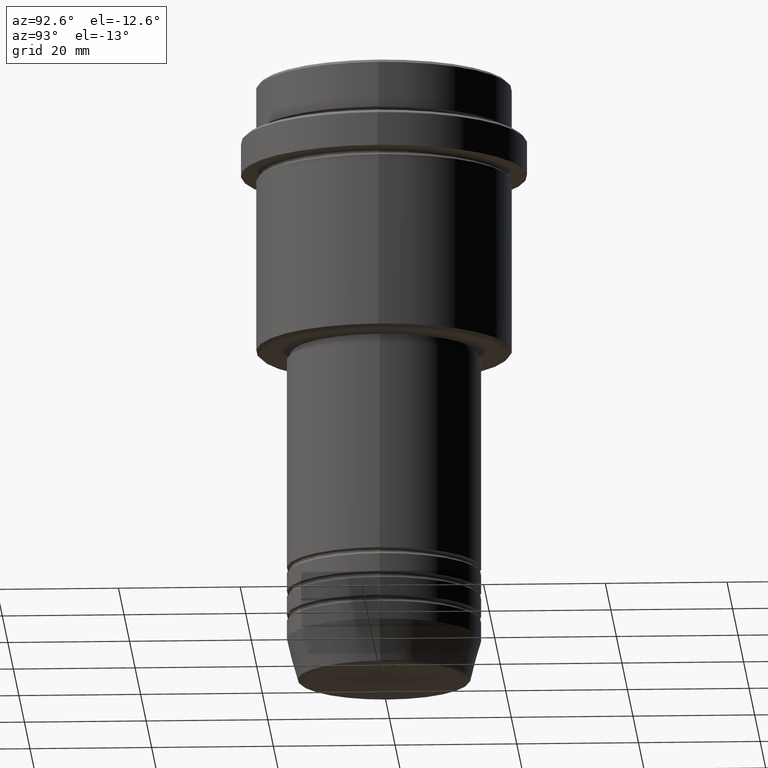
[diagram: clean part render]
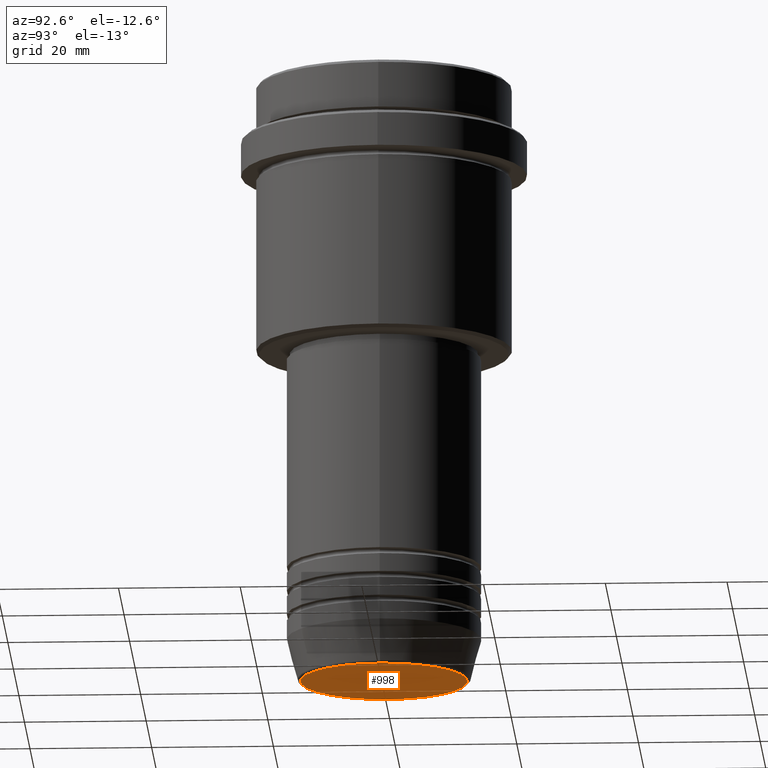
[diagram: same view with one face highlighted and labeled with its STEP entity id]
A machine part, auxiliary view. The second image highlights one B-rep face of the part: STEP entity #998.
In plain terms, the highlighted planar face has unit normal (0, -0, 1).
Its self-contained STEP definition (entity closure, byte-faithful):
#103 = PLANE ( 'NONE',  #180 ) ;
#113 = DIRECTION ( 'NONE',  ( 0.000000000000000000, -0.000000000000000000, 1.000000000000000000 ) ) ;
#180 = AXIS2_PLACEMENT_3D ( 'NONE', #1083, #113, #987 ) ;
#212 = FACE_OUTER_BOUND ( 'NONE', #1270, .T. ) ;
#258 = ORIENTED_EDGE ( 'NONE', *, *, #867, .T. ) ;
#336 = AXIS2_PLACEMENT_3D ( 'NONE', #1362, #811, #1124 ) ;
#651 = VERTEX_POINT ( 'NONE', #943 ) ;
#750 = EDGE_CURVE ( 'NONE', #651, #1233, #951, .T. ) ;
#811 = DIRECTION ( 'NONE',  ( 0.000000000000000000, 0.000000000000000000, -1.000000000000000000 ) ) ;
#867 = EDGE_CURVE ( 'NONE', #1233, #651, #908, .T. ) ;
#868 = DIRECTION ( 'NONE',  ( 0.000000000000000000, 0.000000000000000000, -1.000000000000000000 ) ) ;
#908 = CIRCLE ( 'NONE', #1202, 13.74069215899265473 ) ;
#943 = CARTESIAN_POINT ( 'NONE',  ( 13.74069215899265473, 0.000000000000000000, -100.0000000000000000 ) ) ;
#951 = CIRCLE ( 'NONE', #336, 13.74069215899265473 ) ;
#963 = CARTESIAN_POINT ( 'NONE',  ( -13.74069215899265473, 1.712322416342415591E-15, -100.0000000000000000 ) ) ;
#987 = DIRECTION ( 'NONE',  ( 1.000000000000000000, 0.000000000000000000, 0.000000000000000000 ) ) ;
#994 = DIRECTION ( 'NONE',  ( 1.000000000000000000, 0.000000000000000000, 0.000000000000000000 ) ) ;
#998 = ADVANCED_FACE ( 'NONE', ( #212 ), #103, .F. ) ;
#1083 = CARTESIAN_POINT ( 'NONE',  ( 0.000000000000000000, 0.000000000000000000, -100.0000000000000000 ) ) ;
#1124 = DIRECTION ( 'NONE',  ( 1.000000000000000000, 0.000000000000000000, 0.000000000000000000 ) ) ;
#1201 = ORIENTED_EDGE ( 'NONE', *, *, #750, .T. ) ;
#1202 = AXIS2_PLACEMENT_3D ( 'NONE', #1330, #868, #994 ) ;
#1233 = VERTEX_POINT ( 'NONE', #963 ) ;
#1270 = EDGE_LOOP ( 'NONE', ( #1201, #258 ) ) ;
#1330 = CARTESIAN_POINT ( 'NONE',  ( 0.000000000000000000, 0.000000000000000000, -100.0000000000000000 ) ) ;
#1362 = CARTESIAN_POINT ( 'NONE',  ( 0.000000000000000000, 0.000000000000000000, -100.0000000000000000 ) ) ;